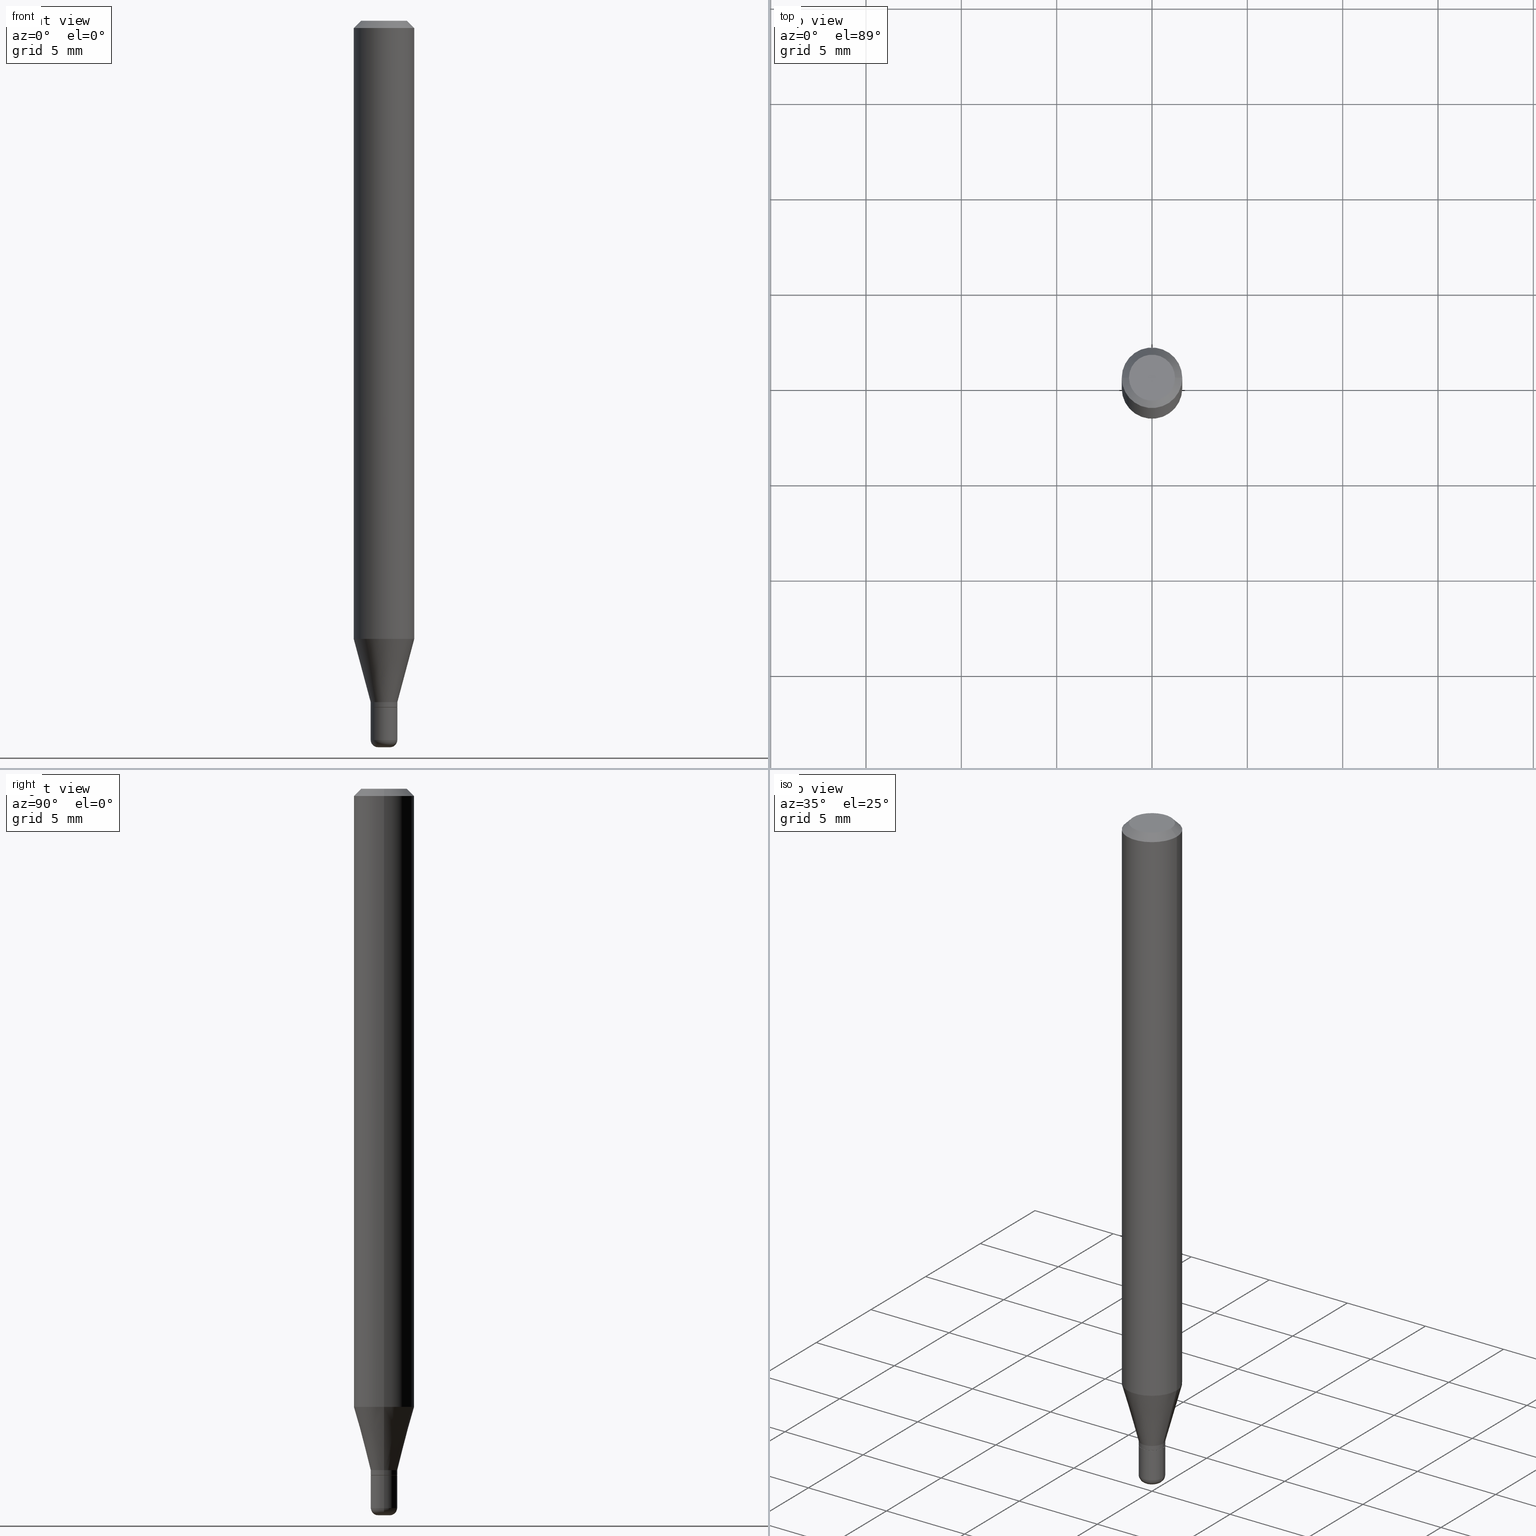
[diagram: canonical four-view strip — front | top / right | iso, engineering-drawing reading convention]
A machine part, canonical four-view strip (front | top / right | iso — engineering-drawing reading convention). The complete STEP part file that produces these views, byte-faithful:
ISO-10303-21;
HEADER;
FILE_DESCRIPTION (( 'STEP AP203' ),
    '1' );
FILE_NAME ('08531.STEP',
    '2024-02-29T19:42:43',
    ( '' ),
    ( '' ),
    'SwSTEP 2.0',
    'SolidWorks 2023',
    '' );
FILE_SCHEMA (( 'CONFIG_CONTROL_DESIGN' ));
ENDSEC;

DATA;
#1 = FACE_OUTER_BOUND ( 'NONE', #467, .T. ) ;
#2 =( NAMED_UNIT ( * ) PLANE_ANGLE_UNIT ( ) SI_UNIT ( $, .RADIAN. ) );
#3 = EDGE_CURVE ( 'NONE', #376, #20, #364, .T. ) ;
#4 = DIRECTION ( 'NONE',  ( -2.445468806185136877E-29, 3.491481338843145188E-15, 1.000000000000000000 ) ) ;
#5 = CYLINDRICAL_SURFACE ( 'NONE', #328, 0.06250000000000000000 ) ;
#6 = CARTESIAN_POINT ( 'NONE',  ( 0.04750000000000000749, -4.035134999187568762E-16, 2.731847993664288856E-16 ) ) ;
#7 = CLOSED_SHELL ( 'NONE', ( #321, #265, #310, #404, #511, #206, #430, #216, #405, #210, #81, #202 ) ) ;
#8 = AXIS2_PLACEMENT_3D ( 'NONE', #250, #209, #453 ) ;
#9 =( GEOMETRIC_REPRESENTATION_CONTEXT ( 3 ) GLOBAL_UNCERTAINTY_ASSIGNED_CONTEXT ( ( #28 ) ) GLOBAL_UNIT_ASSIGNED_CONTEXT ( ( #441, #2, #475 ) ) REPRESENTATION_CONTEXT ( 'NONE', 'WORKASPACE' ) );
#10 = CARTESIAN_POINT ( 'NONE',  ( 3.668203209277704895E-29, -5.237222008264718177E-15, -1.500000000000000222 ) ) ;
#11 = ORIENTED_EDGE ( 'NONE', *, *, #276, .T. ) ;
#12 = CC_DESIGN_PERSON_AND_ORGANIZATION_ASSIGNMENT ( #59, #402, ( #436 ) ) ;
#13 = APPLICATION_CONTEXT ( 'configuration controlled 3d designs of mechanical parts and assemblies' ) ;
#14 = DIRECTION ( 'NONE',  ( 1.000000000000000000, -6.982962677686277755E-15, 0.000000000000000000 ) ) ;
#15 = CYLINDRICAL_SURFACE ( 'NONE', #268, 0.02749999999999999667 ) ;
#16 = DIRECTION ( 'NONE',  ( 1.000000000000000000, -6.982962677686282488E-15, 4.883557194083118506E-29 ) ) ;
#17 = VECTOR ( 'NONE', #35, 39.37007874015748143 ) ;
#18 = CARTESIAN_POINT ( 'NONE',  ( -6.680649051745406845E-45, 9.538196290434862081E-31, 2.731847993664263218E-16 ) ) ;
#19 = DATE_AND_TIME ( #249, #38 ) ;
#20 = VERTEX_POINT ( 'NONE', #419 ) ;
#21 = ORIENTED_EDGE ( 'NONE', *, *, #303, .F. ) ;
#22 = DIRECTION ( 'NONE',  ( 1.000000000000000000, -6.982962677686282488E-15, 4.883557194083118506E-29 ) ) ;
#23 = AXIS2_PLACEMENT_3D ( 'NONE', #100, #137, #232 ) ;
#24 = DIRECTION ( 'NONE',  ( 1.000000000000000000, -6.982962677686262766E-15, 0.000000000000000000 ) ) ;
#25 = ORIENTED_EDGE ( 'NONE', *, *, #245, .T. ) ;
#26 = ORIENTED_EDGE ( 'NONE', *, *, #101, .F. ) ;
#27 = DIRECTION ( 'NONE',  ( -2.445468806185136597E-29, 3.491481338843145583E-15, 1.000000000000000000 ) ) ;
#28 = UNCERTAINTY_MEASURE_WITH_UNIT (LENGTH_MEASURE( 1.000000000000000082E-05 ), #441, 'distance_accuracy_value', 'NONE');
#29 = EDGE_LOOP ( 'NONE', ( #70, #115, #262, #341 ) ) ;
#30 = FACE_OUTER_BOUND ( 'NONE', #254, .T. ) ;
#31 = VECTOR ( 'NONE', #125, 39.37007874015748143 ) ;
#32 = VECTOR ( 'NONE', #151, 39.37007874015748143 ) ;
#33 = FACE_OUTER_BOUND ( 'NONE', #103, .T. ) ;
#34 = CARTESIAN_POINT ( 'NONE',  ( 3.466452032767431328E-29, -4.949174797810159833E-15, -1.417500000000000204 ) ) ;
#35 = DIRECTION ( 'NONE',  ( -2.445468806185136877E-29, 3.491481338843145188E-15, 1.000000000000000000 ) ) ;
#36 = ORIENTED_EDGE ( 'NONE', *, *, #504, .T. ) ;
#37 = DIRECTION ( 'NONE',  ( -2.445468806185136597E-29, 3.491481338843145583E-15, 1.000000000000000000 ) ) ;
#38 = LOCAL_TIME ( 14, 42, 43.00000000000000000, #204 ) ;
#39 = PERSON_AND_ORGANIZATION ( #248, #352 ) ;
#40 = CARTESIAN_POINT ( 'NONE',  ( 0.02749999999999999667, -1.920314736363722951E-16, 1.340948613343882063E-30 ) ) ;
#41 = CALENDAR_DATE ( 2024, 29, 2 ) ;
#42 = LINE ( 'NONE', #431, #184 ) ;
#43 = DIRECTION ( 'NONE',  ( 1.000000000000000000, -6.982962677686266711E-15, 0.000000000000000000 ) ) ;
#44 = PLANE ( 'NONE',  #399 ) ;
#45 = PLANE ( 'NONE',  #277 ) ;
#46 = CIRCLE ( 'NONE', #488, 0.06250000000000000000 ) ;
#47 = CC_DESIGN_APPROVAL ( #468, ( #436 ) ) ;
#48 = EDGE_CURVE ( 'NONE', #379, #425, #152, .T. ) ;
#49 = DIRECTION ( 'NONE',  ( 1.000000000000000000, -6.982962677686265922E-15, 4.876176775795935793E-29 ) ) ;
#50 = DIRECTION ( 'NONE',  ( 1.000000000000000000, -6.982962677686266711E-15, 4.852736867747365086E-29 ) ) ;
#51 = DIRECTION ( 'NONE',  ( -2.445468806185136597E-29, 3.491481338843145583E-15, 1.000000000000000000 ) ) ;
#52 = CARTESIAN_POINT ( 'NONE',  ( -0.06250000000000000000, -1.810322271438192615E-15, -0.01499999999999970281 ) ) ;
#53 = PERSON_AND_ORGANIZATION ( #248, #352 ) ;
#54 = ORIENTED_EDGE ( 'NONE', *, *, #395, .F. ) ;
#55 = SECURITY_CLASSIFICATION ( '', '', #411 ) ;
#56 = CARTESIAN_POINT ( 'NONE',  ( 3.466452032767431328E-29, -4.949174797810159833E-15, -1.417500000000000204 ) ) ;
#57 = LINE ( 'NONE', #297, #283 ) ;
#58 = CARTESIAN_POINT ( 'NONE',  ( 3.631521177184928138E-29, -5.184849788182071492E-15, -1.485000000000000098 ) ) ;
#59 = PERSON_AND_ORGANIZATION ( #248, #352 ) ;
#60 = LINE ( 'NONE', #133, #32 ) ;
#61 = CC_DESIGN_DATE_AND_TIME_ASSIGNMENT ( #465, #116, ( #88 ) ) ;
#62 = VERTEX_POINT ( 'NONE', #272 ) ;
#63 = DIRECTION ( 'NONE',  ( 1.000000000000000000, -6.982962677686262766E-15, 0.000000000000000000 ) ) ;
#64 = VECTOR ( 'NONE', #197, 39.37007874015748854 ) ;
#65 = AXIS2_PLACEMENT_3D ( 'NONE', #294, #340, #485 ) ;
#66 = CONICAL_SURFACE ( 'NONE', #195, 0.02750000000000000708, 0.2617993877991498519 ) ;
#67 = ORIENTED_EDGE ( 'NONE', *, *, #48, .T. ) ;
#68 = EDGE_CURVE ( 'NONE', #267, #302, #123, .T. ) ;
#69 = EDGE_LOOP ( 'NONE', ( #188, #412, #456, #345 ) ) ;
#70 = ORIENTED_EDGE ( 'NONE', *, *, #462, .T. ) ;
#71 = CIRCLE ( 'NONE', #351, 0.04750000000000000749 ) ;
#72 = CARTESIAN_POINT ( 'NONE',  ( 3.631521177184928138E-29, -5.184849788182071492E-15, -1.485000000000000098 ) ) ;
#73 = CC_DESIGN_DATE_AND_TIME_ASSIGNMENT ( #251, #139, ( #55 ) ) ;
#74 = APPLICATION_PROTOCOL_DEFINITION ( 'international standard', 'config_control_design', 1994, #13 ) ;
#75 = EDGE_LOOP ( 'NONE', ( #187, #386, #464, #512 ) ) ;
#76 = DIRECTION ( 'NONE',  ( -2.445468806185136597E-29, 3.491481338843145583E-15, 1.000000000000000000 ) ) ;
#77 = CARTESIAN_POINT ( 'NONE',  ( -0.06250000000000000000, 4.440892098500626162E-16, -3.074334431409316114E-30 ) ) ;
#78 = DIRECTION ( 'NONE',  ( 1.000000000000000000, -6.982962677686261977E-15, 0.000000000000000000 ) ) ;
#79 = EDGE_LOOP ( 'NONE', ( #289, #343, #114, #463 ) ) ;
#80 = LINE ( 'NONE', #40, #427 ) ;
#81 = ADVANCED_FACE ( 'NONE', ( #33 ), #281, .T. ) ;
#82 = AXIS2_PLACEMENT_3D ( 'NONE', #34, #161, #338 ) ;
#83 = ORIENTED_EDGE ( 'NONE', *, *, #89, .F. ) ;
#84 = APPROVAL_STATUS ( 'not_yet_approved' ) ;
#85 = DIRECTION ( 'NONE',  ( 0.2588190451025211281, 1.565188264969622954E-15, 0.9659258262890679791 ) ) ;
#86 = DIRECTION ( 'NONE',  ( -1.000000000000000000, 6.982962677686265922E-15, -4.876176775795935793E-29 ) ) ;
#87 = CARTESIAN_POINT ( 'NONE',  ( -0.01250000000000000590, -5.068927351071375460E-15, -1.500000000000000222 ) ) ;
#88 = PRODUCT_DEFINITION ( 'UNKNOWN', '', #436, #508 ) ;
#89 = EDGE_CURVE ( 'NONE', #371, #325, #406, .T. ) ;
#90 = PRODUCT_DEFINITION_SHAPE ( 'NONE', 'NONE',  #88 ) ;
#91 = CONICAL_SURFACE ( 'NONE', #8, 0.06250000000000000000, 0.7853981633974488341 ) ;
#92 = CARTESIAN_POINT ( 'NONE',  ( 3.465229298364339647E-29, -4.947429057140738329E-15, -1.417000000000000259 ) ) ;
#93 = APPROVAL_ROLE ( '' ) ;
#94 = PRODUCT ( '08531', '08531', '', ( #231 ) ) ;
#95 = EDGE_CURVE ( 'NONE', #349, #425, #286, .T. ) ;
#96 = AXIS2_PLACEMENT_3D ( 'NONE', #409, #487, #292 ) ;
#97 = FACE_OUTER_BOUND ( 'NONE', #339, .T. ) ;
#98 = APPROVAL_STATUS ( 'not_yet_approved' ) ;
#99 = VERTEX_POINT ( 'NONE', #6 ) ;
#100 = CARTESIAN_POINT ( 'NONE',  ( 3.465229298364339647E-29, -4.947429057140738329E-15, -1.417000000000000259 ) ) ;
#101 = EDGE_CURVE ( 'NONE', #62, #302, #164, .T. ) ;
#102 = EDGE_CURVE ( 'NONE', #371, #62, #401, .T. ) ;
#103 = EDGE_LOOP ( 'NONE', ( #300, #505, #390, #332 ) ) ;
#104 = CARTESIAN_POINT ( 'NONE',  ( 3.631521177184928138E-29, -5.184849788182071492E-15, -1.485000000000000098 ) ) ;
#105 = ORIENTED_EDGE ( 'NONE', *, *, #101, .T. ) ;
#106 = DIRECTION ( 'NONE',  ( -2.445468806185136597E-29, 3.491481338843145583E-15, 1.000000000000000000 ) ) ;
#107 = APPROVAL_DATE_TIME ( #513, #214 ) ;
#108 = CONICAL_SURFACE ( 'NONE', #65, 0.02699999999999999623, 0.7853981633975507526 ) ;
#109 = LOCAL_TIME ( 14, 42, 43.00000000000000000, #160 ) ;
#110 = ORIENTED_EDGE ( 'NONE', *, *, #462, .F. ) ;
#111 = ORIENTED_EDGE ( 'NONE', *, *, #127, .T. ) ;
#112 = CARTESIAN_POINT ( 'NONE',  ( 3.440774610302487541E-29, -4.912514243752305891E-15, -1.407000000000000028 ) ) ;
#113 = DIMENSIONAL_EXPONENTS ( 1.000000000000000000, 0.000000000000000000, 0.000000000000000000, 0.000000000000000000, 0.000000000000000000, 0.000000000000000000, 0.000000000000000000 ) ;
#114 = ORIENTED_EDGE ( 'NONE', *, *, #158, .T. ) ;
#115 = ORIENTED_EDGE ( 'NONE', *, *, #143, .T. ) ;
#116 = DATE_TIME_ROLE ( 'creation_date' ) ;
#117 = DIRECTION ( 'NONE',  ( -2.445468806185136597E-29, 3.491481338843145583E-15, 1.000000000000000000 ) ) ;
#118 = ORIENTED_EDGE ( 'NONE', *, *, #335, .T. ) ;
#119 = CARTESIAN_POINT ( 'NONE',  ( 0.000000000000000000, 0.000000000000000000, 0.000000000000000000 ) ) ;
#120 = CIRCLE ( 'NONE', #496, 0.01250000000000000590 ) ;
#121 = AXIS2_PLACEMENT_3D ( 'NONE', #138, #51, #284 ) ;
#122 = APPROVAL_PERSON_ORGANIZATION ( #53, #214, #471 ) ;
#123 = LINE ( 'NONE', #382, #31 ) ;
#124 = CARTESIAN_POINT ( 'NONE',  ( -0.02750000000000000014, -4.871613040662088332E-15, -1.417500000000000204 ) ) ;
#125 = DIRECTION ( 'NONE',  ( -0.7071067811865479058, 2.468850131082261005E-15, -0.7071067811865471286 ) ) ;
#126 = CARTESIAN_POINT ( 'NONE',  ( 3.582686580359766038E-29, -5.359686688179453325E-15, -1.500000000000000222 ) ) ;
#127 = EDGE_CURVE ( 'NONE', #425, #296, #80, .T. ) ;
#128 = CONICAL_SURFACE ( 'NONE', #342, 0.06250000000000000000, 0.7853981633974488341 ) ;
#129 = LOCAL_TIME ( 14, 42, 43.00000000000000000, #346 ) ;
#130 = EDGE_CURVE ( 'NONE', #296, #150, #494, .T. ) ;
#131 = LINE ( 'NONE', #280, #518 ) ;
#132 = ADVANCED_FACE ( 'NONE', ( #278 ), #173, .T. ) ;
#133 = CARTESIAN_POINT ( 'NONE',  ( 0.06250000000000000000, -4.811533449433669144E-16, -0.01499999999999970281 ) ) ;
#134 = LINE ( 'NONE', #176, #384 ) ;
#135 = CONICAL_SURFACE ( 'NONE', #239, 0.02750000000000000708, 0.2617993877991498519 ) ;
#136 = APPROVAL_PERSON_ORGANIZATION ( #445, #468, #93 ) ;
#137 = DIRECTION ( 'NONE',  ( -2.445468806185136597E-29, 3.491481338843145583E-15, 1.000000000000000000 ) ) ;
#138 = CARTESIAN_POINT ( 'NONE',  ( 3.668203209277632395E-31, -5.237222008264614861E-17, -0.01499999999999970281 ) ) ;
#139 = DATE_TIME_ROLE ( 'classification_date' ) ;
#140 = VECTOR ( 'NONE', #241, 39.37007874015748143 ) ;
#141 = EDGE_LOOP ( 'NONE', ( #191, #355, #507, #362 ) ) ;
#142 = AXIS2_PLACEMENT_3D ( 'NONE', #466, #502, #145 ) ;
#143 = EDGE_CURVE ( 'NONE', #149, #379, #257, .T. ) ;
#144 = EDGE_LOOP ( 'NONE', ( #498, #510 ) ) ;
#145 = DIRECTION ( 'NONE',  ( -1.000000000000000000, 6.982962677686265922E-15, -4.876176775795935793E-29 ) ) ;
#146 = ORIENTED_EDGE ( 'NONE', *, *, #504, .F. ) ;
#147 = DIRECTION ( 'NONE',  ( 1.000000000000000000, -6.982962677686266711E-15, 4.876176775795935793E-29 ) ) ;
#148 = CARTESIAN_POINT ( 'NONE',  ( 3.440774610302487541E-29, -4.912514243752305891E-15, -1.407000000000000028 ) ) ;
#149 = VERTEX_POINT ( 'NONE', #87 ) ;
#150 = VERTEX_POINT ( 'NONE', #124 ) ;
#151 = DIRECTION ( 'NONE',  ( 0.7071067811865479058, -7.319954787623257623E-15, -0.7071067811865471286 ) ) ;
#152 = CIRCLE ( 'NONE', #383, 0.02749999999999998973 ) ;
#153 = AXIS2_PLACEMENT_3D ( 'NONE', #455, #106, #246 ) ;
#154 = ORIENTED_EDGE ( 'NONE', *, *, #143, .F. ) ;
#155 = VERTEX_POINT ( 'NONE', #194 ) ;
#156 = ADVANCED_FACE ( 'NONE', ( #354 ), #45, .F. ) ;
#157 = PLANE ( 'NONE',  #142 ) ;
#158 = EDGE_CURVE ( 'NONE', #426, #302, #470, .T. ) ;
#159 = EDGE_LOOP ( 'NONE', ( #11, #237, #225, #218 ) ) ;
#160 = COORDINATED_UNIVERSAL_TIME_OFFSET ( 5, 0, .BEHIND. ) ;
#161 = DIRECTION ( 'NONE',  ( -2.445468806185136597E-29, 3.491481338843145583E-15, 1.000000000000000000 ) ) ;
#162 = CALENDAR_DATE ( 2024, 29, 2 ) ;
#163 = CC_DESIGN_PERSON_AND_ORGANIZATION_ASSIGNMENT ( #198, #309, ( #94 ) ) ;
#164 = LINE ( 'NONE', #77, #140 ) ;
#165 = DIRECTION ( 'NONE',  ( 1.000000000000000000, -6.982962677686261977E-15, 0.000000000000000000 ) ) ;
#166 = COORDINATED_UNIVERSAL_TIME_OFFSET ( 5, 0, .BEHIND. ) ;
#167 = DIRECTION ( 'NONE',  ( -2.445468806185136597E-29, 3.491481338843145583E-15, 1.000000000000000000 ) ) ;
#168 = DIRECTION ( 'NONE',  ( 7.105427357601001859E-15, 1.000000000000000000, -3.491481338843145583E-15 ) ) ;
#169 = CARTESIAN_POINT ( 'NONE',  ( -6.680649051745406845E-45, 9.538196290434862081E-31, 2.731847993664263218E-16 ) ) ;
#170 = EDGE_CURVE ( 'NONE', #20, #503, #131, .T. ) ;
#171 = AXIS2_PLACEMENT_3D ( 'NONE', #360, #444, #49 ) ;
#172 = FACE_OUTER_BOUND ( 'NONE', #506, .T. ) ;
#173 = CYLINDRICAL_SURFACE ( 'NONE', #217, 0.02749999999999999667 ) ;
#174 = CC_DESIGN_PERSON_AND_ORGANIZATION_ASSIGNMENT ( #177, #497, ( #55 ) ) ;
#175 = FACE_OUTER_BOUND ( 'NONE', #75, .T. ) ;
#176 = CARTESIAN_POINT ( 'NONE',  ( 0.06250000000000000000, -4.364351673553916694E-16, 3.047610484872459871E-30 ) ) ;
#177 = PERSON_AND_ORGANIZATION ( #248, #352 ) ;
#178 = AXIS2_PLACEMENT_3D ( 'NONE', #211, #369, #63 ) ;
#179 = ORIENTED_EDGE ( 'NONE', *, *, #48, .F. ) ;
#180 = CARTESIAN_POINT ( 'NONE',  ( 0.01250000000000000590, -5.324509041735797299E-15, -1.500000000000000222 ) ) ;
#181 = AXIS2_PLACEMENT_3D ( 'NONE', #169, #313, #413 ) ;
#182 = EDGE_LOOP ( 'NONE', ( #212, #298, #290, #220 ) ) ;
#183 = CARTESIAN_POINT ( 'NONE',  ( 0.000000000000000000, 0.000000000000000000, 0.000000000000000000 ) ) ;
#184 = VECTOR ( 'NONE', #358, 39.37007874015748143 ) ;
#185 = AXIS2_PLACEMENT_3D ( 'NONE', #10, #393, #348 ) ;
#186 = ORIENTED_EDGE ( 'NONE', *, *, #158, .F. ) ;
#187 = ORIENTED_EDGE ( 'NONE', *, *, #201, .F. ) ;
#188 = ORIENTED_EDGE ( 'NONE', *, *, #3, .T. ) ;
#189 = EDGE_CURVE ( 'NONE', #99, #267, #480, .T. ) ;
#190 = CIRCLE ( 'NONE', #23, 0.02749999999999999667 ) ;
#191 = ORIENTED_EDGE ( 'NONE', *, *, #102, .F. ) ;
#192 = CARTESIAN_POINT ( 'NONE',  ( -0.02749999999999999667, -4.752029804806710210E-15, -1.417000000000000259 ) ) ;
#193 = CARTESIAN_POINT ( 'NONE',  ( 3.466452032767431328E-29, -4.949174797810159833E-15, -1.417500000000000204 ) ) ;
#194 = CARTESIAN_POINT ( 'NONE',  ( 0.02749999999999999667, -5.139460530777110821E-15, -1.417000000000000259 ) ) ;
#195 = AXIS2_PLACEMENT_3D ( 'NONE', #271, #76, #234 ) ;
#196 = ORIENTED_EDGE ( 'NONE', *, *, #396, .T. ) ;
#197 = DIRECTION ( 'NONE',  ( -0.2588190451025211281, 5.211531920934547886E-15, 0.9659258262890679791 ) ) ;
#198 = PERSON_AND_ORGANIZATION ( #248, #352 ) ;
#199 = DIRECTION ( 'NONE',  ( -2.445468806185136597E-29, 3.491481338843145583E-15, 1.000000000000000000 ) ) ;
#200 = LINE ( 'NONE', #437, #443 ) ;
#201 = EDGE_CURVE ( 'NONE', #99, #426, #60, .T. ) ;
#202 = ADVANCED_FACE ( 'NONE', ( #213 ), #221, .T. ) ;
#203 = CARTESIAN_POINT ( 'NONE',  ( -0.02750000000000000708, -4.364738262031039467E-15, -1.407000000000000028 ) ) ;
#204 = COORDINATED_UNIVERSAL_TIME_OFFSET ( 5, 0, .BEHIND. ) ;
#205 = CARTESIAN_POINT ( 'NONE',  ( 3.121343126147216904E-29, -4.456450742493864567E-15, -1.276378221735089635 ) ) ;
#206 = ADVANCED_FACE ( 'NONE', ( #260 ), #135, .T. ) ;
#207 = PERSON_AND_ORGANIZATION ( #248, #352 ) ;
#208 = AXIS2_PLACEMENT_3D ( 'NONE', #389, #168, #473 ) ;
#209 = DIRECTION ( 'NONE',  ( 2.445468806185136597E-29, -3.491481338843145583E-15, -1.000000000000000000 ) ) ;
#210 = ADVANCED_FACE ( 'NONE', ( #282 ), #326, .F. ) ;
#211 = CARTESIAN_POINT ( 'NONE',  ( 3.121343126147216904E-29, -4.456450742493864567E-15, -1.276378221735089635 ) ) ;
#212 = ORIENTED_EDGE ( 'NONE', *, *, #424, .T. ) ;
#213 = FACE_OUTER_BOUND ( 'NONE', #469, .T. ) ;
#214 = APPROVAL ( #323, 'UNSPECIFIED' ) ;
#215 = DIRECTION ( 'NONE',  ( 1.000000000000000000, -6.982962677686277755E-15, 0.000000000000000000 ) ) ;
#216 = ADVANCED_FACE ( 'NONE', ( #175 ), #128, .T. ) ;
#217 = AXIS2_PLACEMENT_3D ( 'NONE', #440, #37, #484 ) ;
#218 = ORIENTED_EDGE ( 'NONE', *, *, #127, .F. ) ;
#219 = DIRECTION ( 'NONE',  ( -2.445468806185136597E-29, 3.491481338843145583E-15, 1.000000000000000000 ) ) ;
#220 = ORIENTED_EDGE ( 'NONE', *, *, #486, .F. ) ;
#221 = CYLINDRICAL_SURFACE ( 'NONE', #442, 0.02750000000000000014 ) ;
#222 = SHAPE_DEFINITION_REPRESENTATION ( #90, #223 ) ;
#223 = ADVANCED_BREP_SHAPE_REPRESENTATION ( '08531', ( #492, #320, #375 ), #9 ) ;
#224 = EDGE_CURVE ( 'NONE', #155, #325, #457, .T. ) ;
#225 = ORIENTED_EDGE ( 'NONE', *, *, #130, .F. ) ;
#226 = DIRECTION ( 'NONE',  ( -2.445468806185136597E-29, 3.491481338843145583E-15, 1.000000000000000000 ) ) ;
#227 = ORIENTED_EDGE ( 'NONE', *, *, #454, .F. ) ;
#228 = CLOSED_SHELL ( 'NONE', ( #316, #132, #156, #387, #253, #483 ) ) ;
#229 = CIRCLE ( 'NONE', #178, 0.06250000000000000000 ) ;
#230 = CARTESIAN_POINT ( 'NONE',  ( 3.466452032767431328E-29, -4.949174797810159833E-15, -1.417500000000000204 ) ) ;
#231 = MECHANICAL_CONTEXT ( 'NONE', #13, 'mechanical' ) ;
#232 = DIRECTION ( 'NONE',  ( 1.000000000000000000, -6.982962677686280121E-15, 0.000000000000000000 ) ) ;
#233 = EDGE_LOOP ( 'NONE', ( #416, #451 ) ) ;
#234 = DIRECTION ( 'NONE',  ( 1.000000000000000000, -6.982962677686277755E-15, 0.000000000000000000 ) ) ;
#235 = DIRECTION ( 'NONE',  ( -6.982962677686266711E-15, -1.000000000000000000, 3.491481338843145583E-15 ) ) ;
#236 = CARTESIAN_POINT ( 'NONE',  ( 3.440774610302487541E-29, -4.912514243752305891E-15, -1.407000000000000028 ) ) ;
#237 = ORIENTED_EDGE ( 'NONE', *, *, #454, .T. ) ;
#238 = APPLICATION_PROTOCOL_DEFINITION ( 'international standard', 'config_control_design', 1994, #367 ) ;
#239 = AXIS2_PLACEMENT_3D ( 'NONE', #112, #264, #14 ) ;
#240 = CARTESIAN_POINT ( 'NONE',  ( -0.02749999999999999667, 1.953992523340275274E-16, -1.352707149820099006E-30 ) ) ;
#241 = DIRECTION ( 'NONE',  ( -2.445468806185136877E-29, 3.491481338843145188E-15, 1.000000000000000000 ) ) ;
#242 = EDGE_LOOP ( 'NONE', ( #227, #67, #111, #21 ) ) ;
#243 = CYLINDRICAL_SURFACE ( 'NONE', #96, 0.02750000000000000014 ) ;
#244 = APPROVAL_PERSON_ORGANIZATION ( #39, #388, #392 ) ;
#245 = EDGE_CURVE ( 'NONE', #503, #371, #57, .T. ) ;
#246 = DIRECTION ( 'NONE',  ( 1.000000000000000000, -6.982962677686282488E-15, 0.000000000000000000 ) ) ;
#247 = CARTESIAN_POINT ( 'NONE',  ( -0.02749999999999998973, -4.871613040662088332E-15, -1.485000000000000098 ) ) ;
#248 = PERSON ( 'UNSPECIFIED', 'UNSPECIFIED', 'UNSPECIFIED', ('UNSPECIFIED'), ('UNSPECIFIED'), ('UNSPECIFIED') ) ;
#249 = CALENDAR_DATE ( 2024, 29, 2 ) ;
#250 = CARTESIAN_POINT ( 'NONE',  ( 3.668203209277632395E-31, -5.237222008264614861E-17, -0.01499999999999970281 ) ) ;
#251 = DATE_AND_TIME ( #324, #408 ) ;
#252 = TOROIDAL_SURFACE ( 'NONE', #312, 0.01250000000000000069, 0.01499999999999998557 ) ;
#253 = ADVANCED_FACE ( 'NONE', ( #499 ), #407, .T. ) ;
#254 = EDGE_LOOP ( 'NONE', ( #118, #459 ) ) ;
#255 = FACE_OUTER_BOUND ( 'NONE', #378, .T. ) ;
#256 = ORIENTED_EDGE ( 'NONE', *, *, #224, .F. ) ;
#257 = CIRCLE ( 'NONE', #208, 0.01499999999999998730 ) ;
#258 = CIRCLE ( 'NONE', #82, 0.02699999999999999623 ) ;
#259 = ORIENTED_EDGE ( 'NONE', *, *, #424, .F. ) ;
#260 = FACE_OUTER_BOUND ( 'NONE', #141, .T. ) ;
#261 = EDGE_CURVE ( 'NONE', #503, #155, #299, .T. ) ;
#262 = ORIENTED_EDGE ( 'NONE', *, *, #276, .F. ) ;
#263 = ORIENTED_EDGE ( 'NONE', *, *, #287, .T. ) ;
#264 = DIRECTION ( 'NONE',  ( -2.445468806185136597E-29, 3.491481338843145583E-15, 1.000000000000000000 ) ) ;
#265 = ADVANCED_FACE ( 'NONE', ( #501 ), #108, .T. ) ;
#266 = EDGE_LOOP ( 'NONE', ( #154, #36, #420, #179 ) ) ;
#267 = VERTEX_POINT ( 'NONE', #461 ) ;
#268 = AXIS2_PLACEMENT_3D ( 'NONE', #491, #403, #318 ) ;
#269 = DIRECTION ( 'NONE',  ( 1.000000000000000000, -6.982962677686266711E-15, 4.876176775795935793E-29 ) ) ;
#270 = PRODUCT_RELATED_PRODUCT_CATEGORY ( 'detail', '', ( #94 ) ) ;
#271 = CARTESIAN_POINT ( 'NONE',  ( 3.440774610302487541E-29, -4.912514243752305891E-15, -1.407000000000000028 ) ) ;
#272 = CARTESIAN_POINT ( 'NONE',  ( -0.06250000000000000000, -4.012361532643800373E-15, -1.276378221735089635 ) ) ;
#273 = DIRECTION ( 'NONE',  ( -2.445468806185136597E-29, 3.491481338843145583E-15, 1.000000000000000000 ) ) ;
#274 = PERSON_AND_ORGANIZATION_ROLE ( 'creator' ) ;
#275 = DIRECTION ( 'NONE',  ( -2.438088387897960049E-29, 3.491481338843145188E-15, 1.000000000000000000 ) ) ;
#276 = EDGE_CURVE ( 'NONE', #425, #379, #435, .T. ) ;
#277 = AXIS2_PLACEMENT_3D ( 'NONE', #479, #438, #86 ) ;
#278 = FACE_OUTER_BOUND ( 'NONE', #159, .T. ) ;
#279 = LENGTH_MEASURE_WITH_UNIT ( LENGTH_MEASURE( 0.02539999999999999897 ), #315 );
#280 = CARTESIAN_POINT ( 'NONE',  ( -0.02699999999999999623, -4.757328259154932612E-15, -1.417500000000000204 ) ) ;
#281 = CONICAL_SURFACE ( 'NONE', #447, 0.02699999999999999623, 0.7853981633975507526 ) ;
#282 = FACE_OUTER_BOUND ( 'NONE', #144, .T. ) ;
#283 = VECTOR ( 'NONE', #317, 39.37007874015748143 ) ;
#284 = DIRECTION ( 'NONE',  ( 1.000000000000000000, -6.982962677686266711E-15, 0.000000000000000000 ) ) ;
#285 = DIRECTION ( 'NONE',  ( 1.000000000000000000, -6.982962677686279332E-15, 0.000000000000000000 ) ) ;
#286 = CIRCLE ( 'NONE', #357, 0.01499999999999998730 ) ;
#287 = EDGE_CURVE ( 'NONE', #460, #62, #229, .T. ) ;
#288 = AXIS2_PLACEMENT_3D ( 'NONE', #92, #219, #337 ) ;
#289 = ORIENTED_EDGE ( 'NONE', *, *, #189, .F. ) ;
#290 = ORIENTED_EDGE ( 'NONE', *, *, #287, .F. ) ;
#291 = DIRECTION ( 'NONE',  ( -2.445468806185136877E-29, 3.491481338843145188E-15, 1.000000000000000000 ) ) ;
#292 = DIRECTION ( 'NONE',  ( 1.000000000000000000, -6.982962677686266711E-15, 4.876176775795935793E-29 ) ) ;
#293 = ORIENTED_EDGE ( 'NONE', *, *, #370, .F. ) ;
#294 = CARTESIAN_POINT ( 'NONE',  ( 3.466452032767431328E-29, -4.949174797810159833E-15, -1.417500000000000204 ) ) ;
#295 = CARTESIAN_POINT ( 'NONE',  ( 0.02749999999999998973, -5.376881261818443984E-15, -1.485000000000000098 ) ) ;
#296 = VERTEX_POINT ( 'NONE', #452 ) ;
#297 = CARTESIAN_POINT ( 'NONE',  ( -0.02750000000000000014, 1.953992523340275521E-16, -1.352707149820099181E-30 ) ) ;
#298 = ORIENTED_EDGE ( 'NONE', *, *, #102, .T. ) ;
#299 = CIRCLE ( 'NONE', #288, 0.02749999999999999667 ) ;
#300 = ORIENTED_EDGE ( 'NONE', *, *, #170, .F. ) ;
#301 = EDGE_CURVE ( 'NONE', #155, #503, #190, .T. ) ;
#302 = VERTEX_POINT ( 'NONE', #52 ) ;
#303 = EDGE_CURVE ( 'NONE', #150, #296, #374, .T. ) ;
#304 = DATE_AND_TIME ( #162, #129 ) ;
#305 = AXIS2_PLACEMENT_3D ( 'NONE', #56, #489, #285 ) ;
#306 = DIRECTION ( 'NONE',  ( -2.445468806185136597E-29, 3.491481338843145583E-15, 1.000000000000000000 ) ) ;
#307 = DIRECTION ( 'NONE',  ( 1.000000000000000000, -6.982962677686279332E-15, 0.000000000000000000 ) ) ;
#308 = DIRECTION ( 'NONE',  ( 1.000000000000000000, -6.982962677686282488E-15, 0.000000000000000000 ) ) ;
#309 = PERSON_AND_ORGANIZATION_ROLE ( 'design_owner' ) ;
#310 = ADVANCED_FACE ( 'NONE', ( #446 ), #91, .T. ) ;
#311 = DIRECTION ( 'NONE',  ( 1.000000000000000000, -6.982962677686291165E-15, 0.000000000000000000 ) ) ;
#312 = AXIS2_PLACEMENT_3D ( 'NONE', #58, #448, #16 ) ;
#313 = DIRECTION ( 'NONE',  ( -2.445468806185136597E-29, 3.491481338843145583E-15, 1.000000000000000000 ) ) ;
#314 = LOCAL_TIME ( 14, 42, 43.00000000000000000, #166 ) ;
#315 =( LENGTH_UNIT ( ) NAMED_UNIT ( * ) SI_UNIT ( $, .METRE. ) );
#316 = ADVANCED_FACE ( 'NONE', ( #368 ), #252, .T. ) ;
#317 = DIRECTION ( 'NONE',  ( -2.445468806185136877E-29, 3.491481338843145188E-15, 1.000000000000000000 ) ) ;
#318 = DIRECTION ( 'NONE',  ( 1.000000000000000000, -6.982962677686265922E-15, 4.876176775795935232E-29 ) ) ;
#319 = AXIS2_PLACEMENT_3D ( 'NONE', #422, #500, #381 ) ;
#320 = MANIFOLD_SOLID_BREP ( 'Body-Move/Copy2[2]', #7 ) ;
#321 = ADVANCED_FACE ( 'NONE', ( #97 ), #243, .T. ) ;
#322 = DIRECTION ( 'NONE',  ( -2.445468806185136877E-29, 3.491481338843145188E-15, 1.000000000000000000 ) ) ;
#323 = APPROVAL_STATUS ( 'not_yet_approved' ) ;
#324 = CALENDAR_DATE ( 2024, 29, 2 ) ;
#325 = VERTEX_POINT ( 'NONE', #327 ) ;
#326 = PLANE ( 'NONE',  #171 ) ;
#327 = CARTESIAN_POINT ( 'NONE',  ( 0.02750000000000000708, -5.104545717388678383E-15, -1.407000000000000028 ) ) ;
#328 = AXIS2_PLACEMENT_3D ( 'NONE', #482, #167, #269 ) ;
#329 = APPROVAL_DATE_TIME ( #19, #468 ) ;
#330 = VECTOR ( 'NONE', #291, 39.37007874015748143 ) ;
#331 = CC_DESIGN_SECURITY_CLASSIFICATION ( #55, ( #436 ) ) ;
#332 = ORIENTED_EDGE ( 'NONE', *, *, #261, .F. ) ;
#333 = DIRECTION ( 'NONE',  ( -2.445468806185136597E-29, 3.491481338843145583E-15, 1.000000000000000000 ) ) ;
#334 = CYLINDRICAL_SURFACE ( 'NONE', #319, 0.06250000000000000000 ) ;
#335 = EDGE_CURVE ( 'NONE', #267, #99, #71, .T. ) ;
#336 = ORIENTED_EDGE ( 'NONE', *, *, #245, .F. ) ;
#337 = DIRECTION ( 'NONE',  ( 1.000000000000000000, -6.982962677686280121E-15, 0.000000000000000000 ) ) ;
#338 = DIRECTION ( 'NONE',  ( 1.000000000000000000, -6.982962677686261977E-15, 0.000000000000000000 ) ) ;
#339 = EDGE_LOOP ( 'NONE', ( #474, #25, #259, #256 ) ) ;
#340 = DIRECTION ( 'NONE',  ( -2.445468806185136597E-29, 3.491481338843145583E-15, 1.000000000000000000 ) ) ;
#341 = ORIENTED_EDGE ( 'NONE', *, *, #95, .F. ) ;
#342 = AXIS2_PLACEMENT_3D ( 'NONE', #377, #417, #372 ) ;
#343 = ORIENTED_EDGE ( 'NONE', *, *, #201, .T. ) ;
#344 = CIRCLE ( 'NONE', #185, 0.01250000000000000590 ) ;
#345 = ORIENTED_EDGE ( 'NONE', *, *, #509, .F. ) ;
#346 = COORDINATED_UNIVERSAL_TIME_OFFSET ( 5, 0, .BEHIND. ) ;
#347 = DIRECTION ( 'NONE',  ( 0.000000000000000000, 0.000000000000000000, 1.000000000000000000 ) ) ;
#348 = DIRECTION ( 'NONE',  ( 1.000000000000000000, -6.982962677686291165E-15, 0.000000000000000000 ) ) ;
#349 = VERTEX_POINT ( 'NONE', #180 ) ;
#350 = AXIS2_PLACEMENT_3D ( 'NONE', #193, #273, #307 ) ;
#351 = AXIS2_PLACEMENT_3D ( 'NONE', #18, #365, #50 ) ;
#352 = ORGANIZATION ( 'UNSPECIFIED', 'UNSPECIFIED', '' ) ;
#353 = CARTESIAN_POINT ( 'NONE',  ( 0.06250000000000000000, -4.892885909849255447E-15, -1.276378221735089635 ) ) ;
#354 = FACE_OUTER_BOUND ( 'NONE', #233, .T. ) ;
#355 = ORIENTED_EDGE ( 'NONE', *, *, #89, .T. ) ;
#356 = DIRECTION ( 'NONE',  ( -0.7071067811866199593, 7.493145998870616062E-15, 0.7071067811864750752 ) ) ;
#357 = AXIS2_PLACEMENT_3D ( 'NONE', #398, #235, #476 ) ;
#358 = DIRECTION ( 'NONE',  ( 0.7071067811866199593, -2.468850131083015945E-15, 0.7071067811864750752 ) ) ;
#359 = CIRCLE ( 'NONE', #121, 0.06250000000000000000 ) ;
#360 = CARTESIAN_POINT ( 'NONE',  ( 3.466452032767431328E-29, -4.949174797810159833E-15, -1.417500000000000204 ) ) ;
#361 = FACE_OUTER_BOUND ( 'NONE', #242, .T. ) ;
#362 = ORIENTED_EDGE ( 'NONE', *, *, #396, .F. ) ;
#363 = PERSON_AND_ORGANIZATION_ROLE ( 'design_supplier' ) ;
#364 = CIRCLE ( 'NONE', #373, 0.02699999999999999623 ) ;
#365 = DIRECTION ( 'NONE',  ( -2.445468806185136597E-29, 3.491481338843145583E-15, 1.000000000000000000 ) ) ;
#366 = AXIS2_PLACEMENT_3D ( 'NONE', #104, #333, #22 ) ;
#367 = APPLICATION_CONTEXT ( 'configuration controlled 3d designs of mechanical parts and assemblies' ) ;
#368 = FACE_OUTER_BOUND ( 'NONE', #29, .T. ) ;
#369 = DIRECTION ( 'NONE',  ( -2.445468806185136597E-29, 3.491481338843145583E-15, 1.000000000000000000 ) ) ;
#370 = EDGE_CURVE ( 'NONE', #460, #426, #134, .T. ) ;
#371 = VERTEX_POINT ( 'NONE', #203 ) ;
#372 = DIRECTION ( 'NONE',  ( -1.000000000000000000, 6.982962677686266711E-15, 0.000000000000000000 ) ) ;
#373 = AXIS2_PLACEMENT_3D ( 'NONE', #517, #423, #165 ) ;
#374 = CIRCLE ( 'NONE', #305, 0.02750000000000000014 ) ;
#375 = AXIS2_PLACEMENT_3D ( 'NONE', #119, #347, #434 ) ;
#376 = VERTEX_POINT ( 'NONE', #495 ) ;
#377 = CARTESIAN_POINT ( 'NONE',  ( 3.668203209277632395E-31, -5.237222008264614861E-17, -0.01499999999999970281 ) ) ;
#378 = EDGE_LOOP ( 'NONE', ( #263, #105, #186, #293 ) ) ;
#379 = VERTEX_POINT ( 'NONE', #247 ) ;
#380 = ORIENTED_EDGE ( 'NONE', *, *, #370, .T. ) ;
#381 = DIRECTION ( 'NONE',  ( 1.000000000000000000, -6.982962677686266711E-15, 4.876176775795935793E-29 ) ) ;
#382 = CARTESIAN_POINT ( 'NONE',  ( -0.06250000000000000000, 3.840629472727455270E-16, -0.01499999999999970281 ) ) ;
#383 = AXIS2_PLACEMENT_3D ( 'NONE', #72, #226, #308 ) ;
#384 = VECTOR ( 'NONE', #322, 39.37007874015748143 ) ;
#385 = APPROVAL_DATE_TIME ( #304, #388 ) ;
#386 = ORIENTED_EDGE ( 'NONE', *, *, #335, .F. ) ;
#387 = ADVANCED_FACE ( 'NONE', ( #361 ), #15, .T. ) ;
#388 = APPROVAL ( #84, 'UNSPECIFIED' ) ;
#389 = CARTESIAN_POINT ( 'NONE',  ( -0.01250000000000000069, -5.096031946212059284E-15, -1.485000000000000098 ) ) ;
#390 = ORIENTED_EDGE ( 'NONE', *, *, #509, .T. ) ;
#391 = CARTESIAN_POINT ( 'NONE',  ( -0.02750000000000000708, -4.717114991418277772E-15, -1.407000000000000028 ) ) ;
#392 = APPROVAL_ROLE ( '' ) ;
#393 = DIRECTION ( 'NONE',  ( -2.445468806185136597E-29, 3.491481338843145583E-15, 1.000000000000000000 ) ) ;
#394 = CARTESIAN_POINT ( 'NONE',  ( 3.668203209277632395E-31, -5.237222008264614861E-17, -0.01499999999999970281 ) ) ;
#395 = EDGE_CURVE ( 'NONE', #302, #426, #359, .T. ) ;
#396 = EDGE_CURVE ( 'NONE', #62, #460, #46, .T. ) ;
#397 = CARTESIAN_POINT ( 'NONE',  ( 3.668203209277704895E-29, -5.237222008264718177E-15, -1.500000000000000222 ) ) ;
#398 = CARTESIAN_POINT ( 'NONE',  ( 0.01250000000000000069, -5.272136821653149826E-15, -1.485000000000000098 ) ) ;
#399 = AXIS2_PLACEMENT_3D ( 'NONE', #126, #275, #472 ) ;
#400 = EDGE_CURVE ( 'NONE', #20, #376, #258, .T. ) ;
#401 = LINE ( 'NONE', #391, #64 ) ;
#402 = PERSON_AND_ORGANIZATION_ROLE ( 'creator' ) ;
#403 = DIRECTION ( 'NONE',  ( -2.445468806185136597E-29, 3.491481338843145583E-15, 1.000000000000000000 ) ) ;
#404 = ADVANCED_FACE ( 'NONE', ( #255 ), #334, .T. ) ;
#405 = ADVANCED_FACE ( 'NONE', ( #30 ), #157, .F. ) ;
#406 = CIRCLE ( 'NONE', #516, 0.02750000000000000708 ) ;
#407 = TOROIDAL_SURFACE ( 'NONE', #366, 0.01250000000000000069, 0.01499999999999998557 ) ;
#408 = LOCAL_TIME ( 14, 42, 43.00000000000000000, #490 ) ;
#409 = CARTESIAN_POINT ( 'NONE',  ( 0.000000000000000000, 0.000000000000000000, 0.000000000000000000 ) ) ;
#410 = CC_DESIGN_PERSON_AND_ORGANIZATION_ASSIGNMENT ( #477, #274, ( #88 ) ) ;
#411 = SECURITY_CLASSIFICATION_LEVEL ( 'unclassified' ) ;
#412 = ORIENTED_EDGE ( 'NONE', *, *, #170, .T. ) ;
#413 = DIRECTION ( 'NONE',  ( 1.000000000000000000, -6.982962677686266711E-15, 4.852736867747365086E-29 ) ) ;
#414 = ORIENTED_EDGE ( 'NONE', *, *, #261, .T. ) ;
#415 = CARTESIAN_POINT ( 'NONE',  ( 0.02750000000000000014, -1.920314736363723444E-16, 1.340948613343882413E-30 ) ) ;
#416 = ORIENTED_EDGE ( 'NONE', *, *, #130, .T. ) ;
#417 = DIRECTION ( 'NONE',  ( 2.445468806185136597E-29, -3.491481338843145583E-15, -1.000000000000000000 ) ) ;
#418 = DIRECTION ( 'NONE',  ( -2.445468806185136597E-29, 3.491481338843145583E-15, 1.000000000000000000 ) ) ;
#419 = CARTESIAN_POINT ( 'NONE',  ( -0.02699999999999999623, -4.754679031980821411E-15, -1.417500000000000204 ) ) ;
#420 = ORIENTED_EDGE ( 'NONE', *, *, #95, .T. ) ;
#421 = CALENDAR_DATE ( 2024, 29, 2 ) ;
#422 = CARTESIAN_POINT ( 'NONE',  ( 0.000000000000000000, 0.000000000000000000, 0.000000000000000000 ) ) ;
#423 = DIRECTION ( 'NONE',  ( -2.445468806185136597E-29, 3.491481338843145583E-15, 1.000000000000000000 ) ) ;
#424 = EDGE_CURVE ( 'NONE', #325, #371, #428, .T. ) ;
#425 = VERTEX_POINT ( 'NONE', #295 ) ;
#426 = VERTEX_POINT ( 'NONE', #478 ) ;
#427 = VECTOR ( 'NONE', #4, 39.37007874015748143 ) ;
#428 = CIRCLE ( 'NONE', #458, 0.02750000000000000708 ) ;
#429 = CC_DESIGN_PERSON_AND_ORGANIZATION_ASSIGNMENT ( #207, #363, ( #436 ) ) ;
#430 = ADVANCED_FACE ( 'NONE', ( #172 ), #5, .T. ) ;
#431 = CARTESIAN_POINT ( 'NONE',  ( 0.02699999999999999623, -5.137714790107688529E-15, -1.417500000000000204 ) ) ;
#432 = DIRECTION ( 'NONE',  ( -2.445468806185136597E-29, 3.491481338843145583E-15, 1.000000000000000000 ) ) ;
#433 = DIRECTION ( 'NONE',  ( -2.445468806185136597E-29, 3.491481338843145583E-15, 1.000000000000000000 ) ) ;
#434 = DIRECTION ( 'NONE',  ( 1.000000000000000000, 0.000000000000000000, 0.000000000000000000 ) ) ;
#435 = CIRCLE ( 'NONE', #153, 0.02749999999999998973 ) ;
#436 = PRODUCT_DEFINITION_FORMATION_WITH_SPECIFIED_SOURCE ( 'ANY', '', #94, .NOT_KNOWN. ) ;
#437 = CARTESIAN_POINT ( 'NONE',  ( 0.02750000000000000708, -5.104545717388678383E-15, -1.407000000000000028 ) ) ;
#438 = DIRECTION ( 'NONE',  ( 2.438088387897960049E-29, -3.491481338843145188E-15, -1.000000000000000000 ) ) ;
#439 = LINE ( 'NONE', #240, #17 ) ;
#440 = CARTESIAN_POINT ( 'NONE',  ( 0.000000000000000000, 0.000000000000000000, 0.000000000000000000 ) ) ;
#441 =( CONVERSION_BASED_UNIT ( 'INCH', #279 ) LENGTH_UNIT ( ) NAMED_UNIT ( #113 ) );
#442 = AXIS2_PLACEMENT_3D ( 'NONE', #183, #27, #147 ) ;
#443 = VECTOR ( 'NONE', #85, 39.37007874015748854 ) ;
#444 = DIRECTION ( 'NONE',  ( -2.438088387897960049E-29, 3.491481338843145188E-15, 1.000000000000000000 ) ) ;
#445 = PERSON_AND_ORGANIZATION ( #248, #352 ) ;
#446 = FACE_OUTER_BOUND ( 'NONE', #79, .T. ) ;
#447 = AXIS2_PLACEMENT_3D ( 'NONE', #230, #433, #78 ) ;
#448 = DIRECTION ( 'NONE',  ( -2.445468806185136597E-29, 3.491481338843145583E-15, 1.000000000000000000 ) ) ;
#449 = AXIS2_PLACEMENT_3D ( 'NONE', #394, #199, #43 ) ;
#450 = CC_DESIGN_APPROVAL ( #388, ( #88 ) ) ;
#451 = ORIENTED_EDGE ( 'NONE', *, *, #303, .T. ) ;
#452 = CARTESIAN_POINT ( 'NONE',  ( 0.02750000000000000014, -5.141206271446532325E-15, -1.417500000000000204 ) ) ;
#453 = DIRECTION ( 'NONE',  ( -1.000000000000000000, 6.982962677686266711E-15, 0.000000000000000000 ) ) ;
#454 = EDGE_CURVE ( 'NONE', #379, #150, #439, .T. ) ;
#455 = CARTESIAN_POINT ( 'NONE',  ( 3.631521177184928138E-29, -5.184849788182071492E-15, -1.485000000000000098 ) ) ;
#456 = ORIENTED_EDGE ( 'NONE', *, *, #301, .F. ) ;
#457 = LINE ( 'NONE', #415, #330 ) ;
#458 = AXIS2_PLACEMENT_3D ( 'NONE', #148, #117, #215 ) ;
#459 = ORIENTED_EDGE ( 'NONE', *, *, #189, .T. ) ;
#460 = VERTEX_POINT ( 'NONE', #353 ) ;
#461 = CARTESIAN_POINT ( 'NONE',  ( -0.04750000000000000749, 3.578768372314221353E-16, 2.731847993664239060E-16 ) ) ;
#462 = EDGE_CURVE ( 'NONE', #349, #149, #120, .T. ) ;
#463 = ORIENTED_EDGE ( 'NONE', *, *, #68, .F. ) ;
#464 = ORIENTED_EDGE ( 'NONE', *, *, #68, .T. ) ;
#465 = DATE_AND_TIME ( #41, #109 ) ;
#466 = CARTESIAN_POINT ( 'NONE',  ( 3.316907271900976589E-16, 0.04750000000000000749, -2.925296391183627249E-17 ) ) ;
#467 = EDGE_LOOP ( 'NONE', ( #110, #146 ) ) ;
#468 = APPROVAL ( #98, 'UNSPECIFIED' ) ;
#469 = EDGE_LOOP ( 'NONE', ( #336, #414, #493, #83 ) ) ;
#470 = CIRCLE ( 'NONE', #449, 0.06250000000000000000 ) ;
#471 = APPROVAL_ROLE ( '' ) ;
#472 = DIRECTION ( 'NONE',  ( 1.000000000000000000, -6.982962677686265922E-15, 4.876176775795935793E-29 ) ) ;
#473 = DIRECTION ( 'NONE',  ( -1.000000000000000000, 7.105427357600997126E-15, 0.000000000000000000 ) ) ;
#474 = ORIENTED_EDGE ( 'NONE', *, *, #301, .T. ) ;
#475 =( NAMED_UNIT ( * ) SI_UNIT ( $, .STERADIAN. ) SOLID_ANGLE_UNIT ( ) );
#476 = DIRECTION ( 'NONE',  ( 1.000000000000000000, -6.982962677686273810E-15, 0.000000000000000000 ) ) ;
#477 = PERSON_AND_ORGANIZATION ( #248, #352 ) ;
#478 = CARTESIAN_POINT ( 'NONE',  ( 0.06250000000000000000, -4.888073874380378612E-16, -0.01499999999999970281 ) ) ;
#479 = CARTESIAN_POINT ( 'NONE',  ( 1.920314736364070050E-16, 0.02749999999999505271, -1.417500000000000204 ) ) ;
#480 = CIRCLE ( 'NONE', #181, 0.04750000000000000749 ) ;
#481 = CC_DESIGN_APPROVAL ( #214, ( #55 ) ) ;
#482 = CARTESIAN_POINT ( 'NONE',  ( 0.000000000000000000, 0.000000000000000000, 0.000000000000000000 ) ) ;
#483 = ADVANCED_FACE ( 'NONE', ( #1 ), #44, .F. ) ;
#484 = DIRECTION ( 'NONE',  ( 1.000000000000000000, -6.982962677686265922E-15, 4.876176775795935232E-29 ) ) ;
#485 = DIRECTION ( 'NONE',  ( 1.000000000000000000, -6.982962677686261977E-15, 0.000000000000000000 ) ) ;
#486 = EDGE_CURVE ( 'NONE', #325, #460, #200, .T. ) ;
#487 = DIRECTION ( 'NONE',  ( -2.445468806185136597E-29, 3.491481338843145583E-15, 1.000000000000000000 ) ) ;
#488 = AXIS2_PLACEMENT_3D ( 'NONE', #205, #418, #24 ) ;
#489 = DIRECTION ( 'NONE',  ( -2.445468806185136597E-29, 3.491481338843145583E-15, 1.000000000000000000 ) ) ;
#490 = COORDINATED_UNIVERSAL_TIME_OFFSET ( 5, 0, .BEHIND. ) ;
#491 = CARTESIAN_POINT ( 'NONE',  ( 0.000000000000000000, 0.000000000000000000, 0.000000000000000000 ) ) ;
#492 = MANIFOLD_SOLID_BREP ( 'Body-Move/Copy2[1]', #228 ) ;
#493 = ORIENTED_EDGE ( 'NONE', *, *, #224, .T. ) ;
#494 = CIRCLE ( 'NONE', #350, 0.02750000000000000014 ) ;
#495 = CARTESIAN_POINT ( 'NONE',  ( 0.02699999999999999623, -5.137714790107688529E-15, -1.417500000000000204 ) ) ;
#496 = AXIS2_PLACEMENT_3D ( 'NONE', #397, #306, #311 ) ;
#497 = PERSON_AND_ORGANIZATION_ROLE ( 'classification_officer' ) ;
#498 = ORIENTED_EDGE ( 'NONE', *, *, #3, .F. ) ;
#499 = FACE_OUTER_BOUND ( 'NONE', #266, .T. ) ;
#500 = DIRECTION ( 'NONE',  ( -2.445468806185136597E-29, 3.491481338843145583E-15, 1.000000000000000000 ) ) ;
#501 = FACE_OUTER_BOUND ( 'NONE', #69, .T. ) ;
#502 = DIRECTION ( 'NONE',  ( 2.438088387897960049E-29, -3.491481338843145188E-15, -1.000000000000000000 ) ) ;
#503 = VERTEX_POINT ( 'NONE', #192 ) ;
#504 = EDGE_CURVE ( 'NONE', #149, #349, #344, .T. ) ;
#505 = ORIENTED_EDGE ( 'NONE', *, *, #400, .T. ) ;
#506 = EDGE_LOOP ( 'NONE', ( #26, #196, #380, #54 ) ) ;
#507 = ORIENTED_EDGE ( 'NONE', *, *, #486, .T. ) ;
#508 = DESIGN_CONTEXT ( 'detailed design', #367, 'design' ) ;
#509 = EDGE_CURVE ( 'NONE', #376, #155, #42, .T. ) ;
#510 = ORIENTED_EDGE ( 'NONE', *, *, #400, .F. ) ;
#511 = ADVANCED_FACE ( 'NONE', ( #514 ), #66, .T. ) ;
#512 = ORIENTED_EDGE ( 'NONE', *, *, #395, .T. ) ;
#513 = DATE_AND_TIME ( #421, #314 ) ;
#514 = FACE_OUTER_BOUND ( 'NONE', #182, .T. ) ;
#515 = DIRECTION ( 'NONE',  ( 1.000000000000000000, -6.982962677686277755E-15, 0.000000000000000000 ) ) ;
#516 = AXIS2_PLACEMENT_3D ( 'NONE', #236, #432, #515 ) ;
#517 = CARTESIAN_POINT ( 'NONE',  ( 3.466452032767431328E-29, -4.949174797810159833E-15, -1.417500000000000204 ) ) ;
#518 = VECTOR ( 'NONE', #356, 39.37007874015748143 ) ;
ENDSEC;
END-ISO-10303-21;
